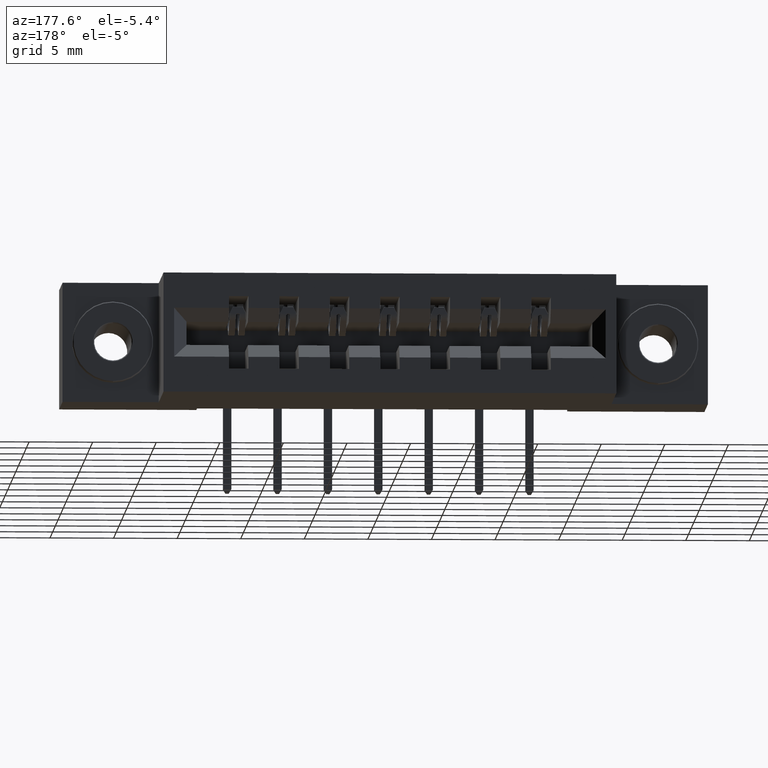
[diagram: clean part render]
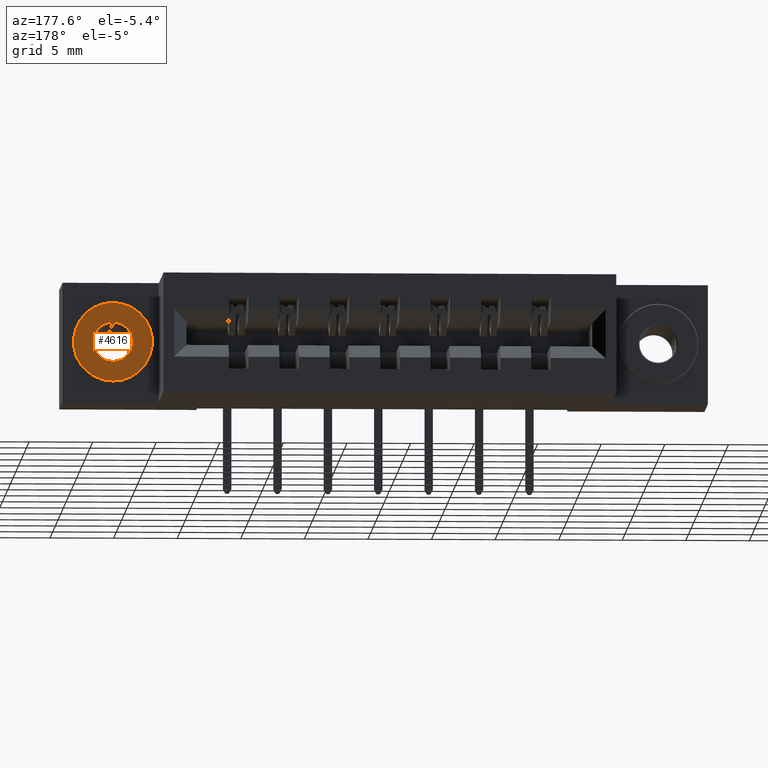
[diagram: same view with one face highlighted and labeled with its STEP entity id]
A machine part, auxiliary view. The second image highlights one B-rep face of the part: STEP entity #4616.
In plain terms, the highlighted planar face has unit normal (-0, -1, -0).
Its self-contained STEP definition (entity closure, byte-faithful):
#9 = DIRECTION ( 'NONE',  ( -3.408749858497504800E-034, 7.095886083921892200E-051, 1.000000000000000000 ) ) ;
#748 = CARTESIAN_POINT ( 'NONE',  ( 0.0000000000000000000, 0.0000000000000000000, 0.0000000000000000000 ) ) ;
#916 = CARTESIAN_POINT ( 'NONE',  ( 0.0000000000000000000, 0.0000000000000000000, 0.0000000000000000000 ) ) ;
#986 = EDGE_CURVE ( 'NONE', #1082, #10231, #2114, .T. ) ;
#1082 = VERTEX_POINT ( 'NONE', #4572 ) ;
#1361 = FACE_BOUND ( 'NONE', #4441, .T. ) ;
#1380 = ORIENTED_EDGE ( 'NONE', *, *, #6194, .T. ) ;
#1572 = AXIS2_PLACEMENT_3D ( 'NONE', #7706, #8421, #2846 ) ;
#1880 = EDGE_CURVE ( 'NONE', #3379, #7692, #7652, .T. ) ;
#2114 = CIRCLE ( 'NONE', #1572, 0.1220000000000000800 ) ;
#2292 = ORIENTED_EDGE ( 'NONE', *, *, #5074, .T. ) ;
#2443 = DIRECTION ( 'NONE',  ( -2.465190328815661900E-032, 1.000000000000000000, 0.0000000000000000000 ) ) ;
#2846 = DIRECTION ( 'NONE',  ( -3.408749858497504800E-034, 7.095886083921892200E-051, 1.000000000000000000 ) ) ;
#3379 = VERTEX_POINT ( 'NONE', #5510 ) ;
#3576 = CARTESIAN_POINT ( 'NONE',  ( 9.474908400129976100E-035, 0.0000000000000000000, -0.06099999999999990800 ) ) ;
#3712 = AXIS2_PLACEMENT_3D ( 'NONE', #748, #5653, #6479 ) ;
#3724 = FACE_OUTER_BOUND ( 'NONE', #7119, .T. ) ;
#3989 = AXIS2_PLACEMENT_3D ( 'NONE', #916, #2443, #6585 ) ;
#4085 = CARTESIAN_POINT ( 'NONE',  ( 0.0000000000000000000, 0.0000000000000000000, 0.0000000000000000000 ) ) ;
#4441 = EDGE_LOOP ( 'NONE', ( #1380, #9922 ) ) ;
#4527 = ORIENTED_EDGE ( 'NONE', *, *, #986, .T. ) ;
#4572 = CARTESIAN_POINT ( 'NONE',  ( 1.512438796946981900E-017, 3.728449495159294300E-049, -0.1220000000000000800 ) ) ;
#4616 = ADVANCED_FACE ( 'NONE', ( #1361, #3724 ), #5881, .F. ) ;
#4886 = CIRCLE ( 'NONE', #6725, 0.1220000000000000800 ) ;
#5074 = EDGE_CURVE ( 'NONE', #10231, #1082, #4886, .T. ) ;
#5510 = CARTESIAN_POINT ( 'NONE',  ( 7.470345474798842600E-018, 0.0000000000000000000, 0.06099999999999990800 ) ) ;
#5653 = DIRECTION ( 'NONE',  ( -2.465190328815661900E-032, 1.000000000000000000, 0.0000000000000000000 ) ) ;
#5735 = DIRECTION ( 'NONE',  ( -3.408749858497505200E-034, 7.095886083921892200E-051, 1.000000000000000000 ) ) ;
#5825 = CARTESIAN_POINT ( 'NONE',  ( -4.158674827366958800E-035, 8.656981022384714400E-052, 0.1220000000000000800 ) ) ;
#5881 = PLANE ( 'NONE',  #6320 ) ;
#6194 = EDGE_CURVE ( 'NONE', #7692, #3379, #7705, .T. ) ;
#6320 = AXIS2_PLACEMENT_3D ( 'NONE', #6672, #8984, #5735 ) ;
#6479 = DIRECTION ( 'NONE',  ( -3.408749858497505200E-034, 7.095886083921893400E-051, 1.000000000000000000 ) ) ;
#6585 = DIRECTION ( 'NONE',  ( -3.408749858497505200E-034, 7.095886083921893400E-051, 1.000000000000000000 ) ) ;
#6672 = CARTESIAN_POINT ( 'NONE',  ( 0.0000000000000000000, 0.0000000000000000000, 0.0000000000000000000 ) ) ;
#6725 = AXIS2_PLACEMENT_3D ( 'NONE', #4085, #8848, #9 ) ;
#7119 = EDGE_LOOP ( 'NONE', ( #2292, #4527 ) ) ;
#7652 = CIRCLE ( 'NONE', #3712, 0.06099999999999990800 ) ;
#7692 = VERTEX_POINT ( 'NONE', #3576 ) ;
#7705 = CIRCLE ( 'NONE', #3989, 0.06099999999999990800 ) ;
#7706 = CARTESIAN_POINT ( 'NONE',  ( 0.0000000000000000000, 0.0000000000000000000, 0.0000000000000000000 ) ) ;
#8421 = DIRECTION ( 'NONE',  ( 2.465190328815661900E-032, -1.000000000000000000, -0.0000000000000000000 ) ) ;
#8848 = DIRECTION ( 'NONE',  ( 2.465190328815661900E-032, -1.000000000000000000, -0.0000000000000000000 ) ) ;
#8984 = DIRECTION ( 'NONE',  ( -2.465190328815661900E-032, 1.000000000000000000, -7.095886083921900600E-051 ) ) ;
#9922 = ORIENTED_EDGE ( 'NONE', *, *, #1880, .T. ) ;
#10231 = VERTEX_POINT ( 'NONE', #5825 ) ;